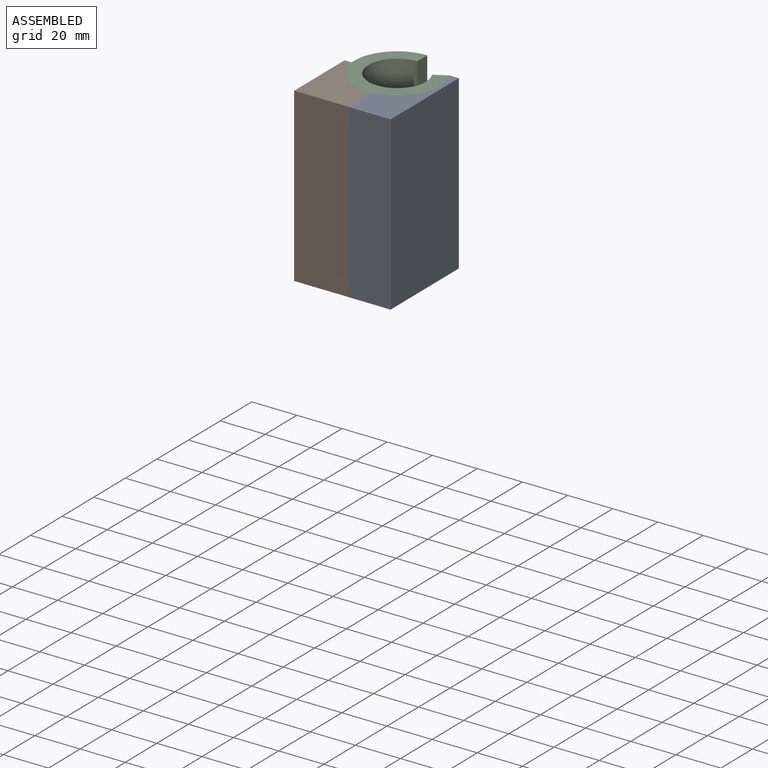
[diagram: assembled view]
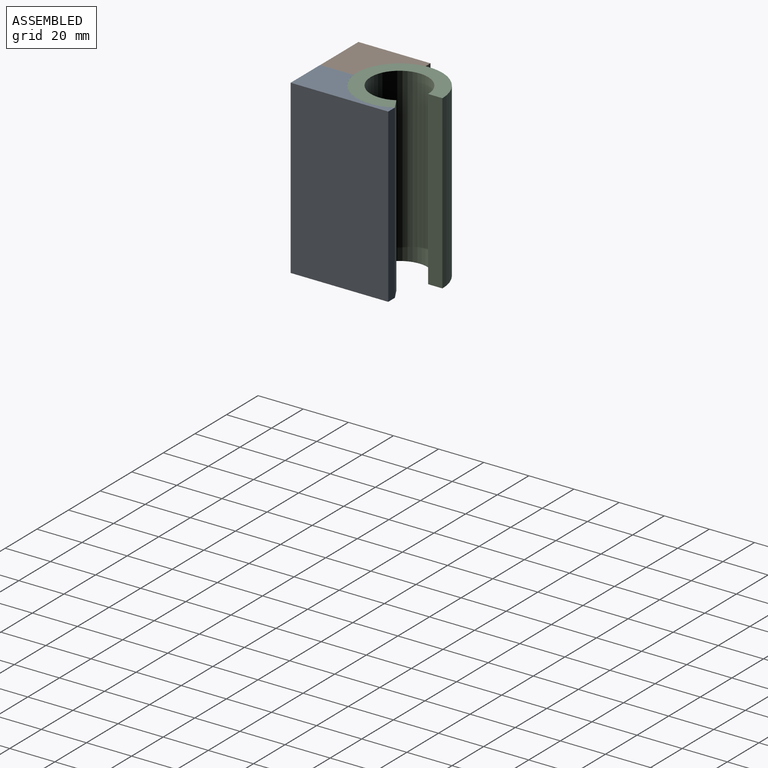
[diagram: assembled view, second angle]
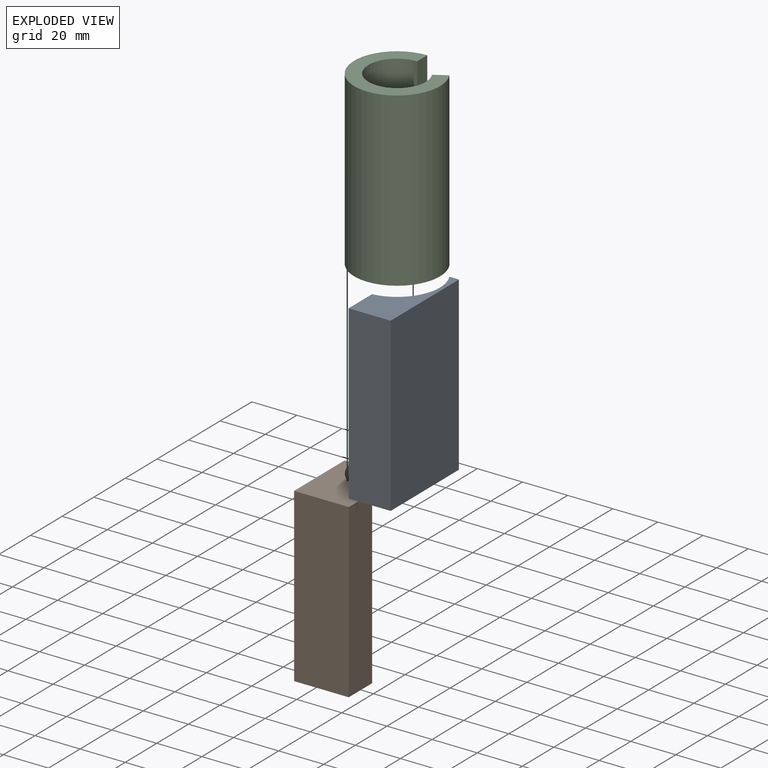
[diagram: exploded view]
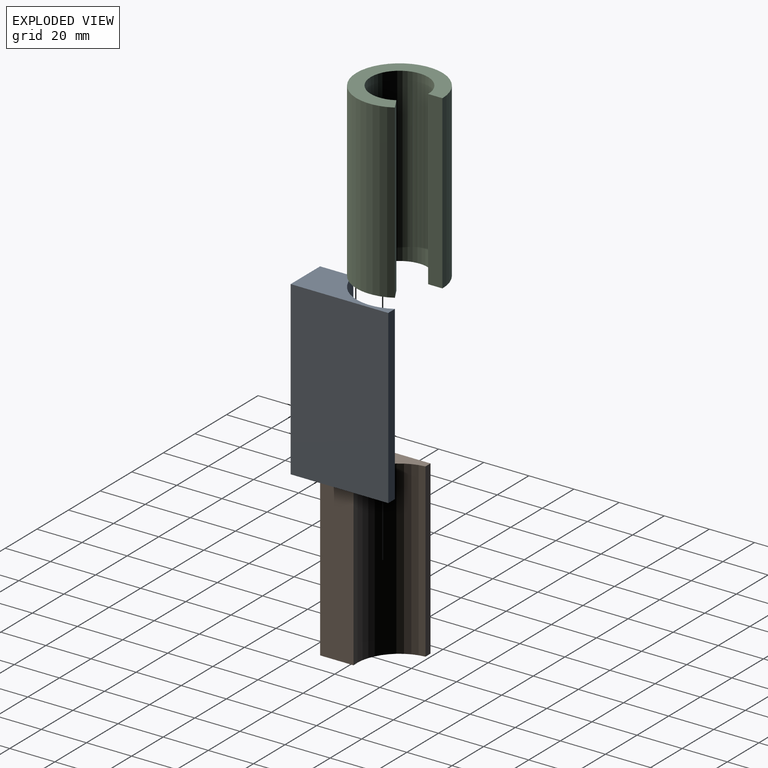
[diagram: exploded view, second angle]
ASSEMBLY  parts=3 mates=2
PART A: 7 faces, bbox 18.6x43.2x76.2 mm
  f0: plane 76.2x4.23mm, normal (0,1,0), area 322mm2, adj f1,f4,f5,f6
  f1: cylinder r=19.05mm len=76.2mm, axis (0,0,1), area 2880mm2, adj f0,f2,f5,f6
  f2: plane 76.2x14.78mm, normal (-1,0,0), area 1125.9mm2, adj f1,f3,f5,f6
  f3: plane 76.2x18.63mm, normal (0,-1,0), area 1419.2mm2, adj f2,f4,f5,f6
  f4: plane 76.2x43.23mm, normal (1,0,0), area 3294.4mm2, adj f0,f3,f5,f6
  f5: plane 43.23x18.63mm, normal (0,0,-1), area 406.5mm2, adj f0,f1,f2,f3,f4
  f6: plane 43.23x18.63mm, normal (0,0,1), area 406.5mm2, adj f0,f1,f2,f3,f4
PART B: 7 faces, bbox 24.2x31.9x76.2 mm
  f0: plane 76.2x24.22mm, normal (0,-1,0), area 1845.5mm2, adj f1,f4,f5,f6
  f1: plane 76.2x14.78mm, normal (1,0,0), area 1125.9mm2, adj f0,f2,f5,f6
  f2: cylinder r=19mm len=76.2mm, axis (0,0,1), area 2305.1mm2, adj f1,f3,f5,f6
  f3: plane 76.2x3.18mm, normal (0,1,0), area 242mm2, adj f2,f4,f5,f6
  f4: plane 76.2x31.94mm, normal (-1,0,0), area 2433.7mm2, adj f0,f3,f5,f6
  f5: plane 31.94x24.22mm, normal (0,0,-1), area 486mm2, adj f0,f1,f2,f3,f4
  f6: plane 31.94x24.22mm, normal (0,0,1), area 486mm2, adj f0,f1,f2,f3,f4
PART C: 6 faces, bbox 38.1x38.1x76.2 mm
  f0: plane 38.1x38.1mm, normal (0,0,1), area 527.8mm2, adj f1,f3,f4,f5
  f1: cylinder r=12.7mm len=76.2mm, axis (0,0,-1), area 5067.1mm2, adj f0,f2,f4,f5
  f2: plane 38.1x38.1mm, normal (0,0,-1), area 527.8mm2, adj f1,f3,f4,f5
  f3: cylinder r=19.05mm len=76.2mm, axis (0,0,-1), area 7600.6mm2, adj f0,f2,f4,f5
  f4: plane 76.2x5.5mm, normal (-0.5,0.87,0), area 483.9mm2, adj f0,f1,f2,f3
  f5: plane 76.2x6.35mm, normal (1,0,0), area 483.9mm2, adj f0,f1,f2,f3
PLACE A t=(22.95,30.78,-1.72)mm
PLACE B t=(22.97,30.84,-1.72)mm
PLACE C t=(22.95,30.78,-1.72)mm
MATE fastened B.f2 <-> C.f1  axis (0,0,1) through (22.95,30.78,36.38)mm
MATE fastened A.f1 <-> C.f1  axis (0,0,1) through (22.95,30.78,36.38)mm
